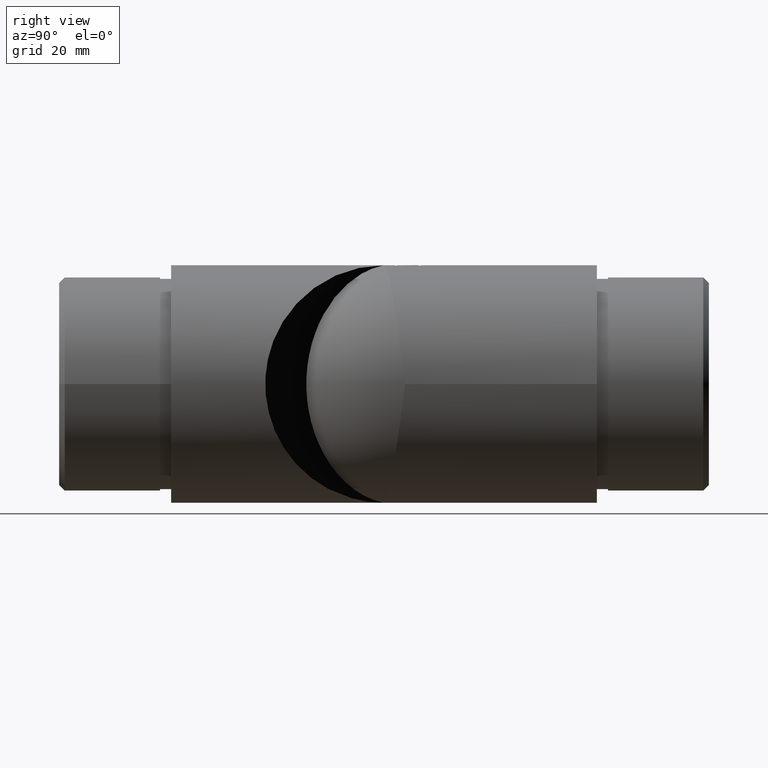
[diagram: clean part render]
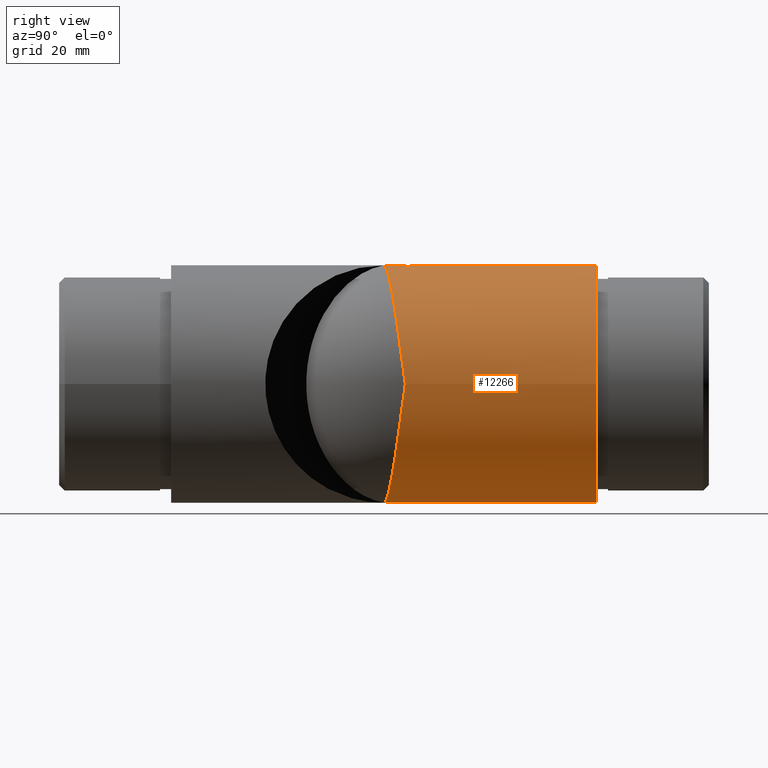
[diagram: same view with one face highlighted and labeled with its STEP entity id]
A machine part, right view. The second image highlights one B-rep face of the part: STEP entity #12266.
In plain terms, the highlighted cylindrical surface (bore or boss wall) has radius 21.2 mm, axis along (-0, -1, -0).
Its self-contained STEP definition (entity closure, byte-faithful):
#91 = CARTESIAN_POINT ( 'NONE',  ( -4.876947464899439300, 37.61251571859919800, -20.64297535189070500 ) ) ;
#214 = CARTESIAN_POINT ( 'NONE',  ( -18.03023835138629100, 35.74744722166654000, -11.17298058216602600 ) ) ;
#329 = CARTESIAN_POINT ( 'NONE',  ( 21.19999999999999200, 16.80000000000000100, -6.188801143558286000E-012 ) ) ;
#350 = ORIENTED_EDGE ( 'NONE', *, *, #1686, .F. ) ;
#385 = ORIENTED_EDGE ( 'NONE', *, *, #16563, .F. ) ;
#571 = CARTESIAN_POINT ( 'NONE',  ( 2.060276313999473500, 32.20682909235768700, 21.09986473249838900 ) ) ;
#625 = DIRECTION ( 'NONE',  ( -1.000000000000000000, -2.225770373877210300E-018, 2.565854121688507800E-049 ) ) ;
#630 = CARTESIAN_POINT ( 'NONE',  ( 1.951354978294854500, 32.07687989557638300, 21.11034249711790200 ) ) ;
#684 = CARTESIAN_POINT ( 'NONE',  ( 0.6725235208547485400, 31.29711668224037500, 21.18998478002686200 ) ) ;
#766 = CYLINDRICAL_SURFACE ( 'NONE', #2791, 21.19999999999999600 ) ;
#867 = CARTESIAN_POINT ( 'NONE',  ( -1.591248601577588900, 31.72385864822288700, 21.14157405171555500 ) ) ;
#870 = DIRECTION ( 'NONE',  ( -2.225770373877210300E-018, 1.000000000000000000, 0.0000000000000000000 ) ) ;
#993 = CARTESIAN_POINT ( 'NONE',  ( -2.591267127455228400, 33.92437889236012400, 21.04103929645864200 ) ) ;
#1054 = CARTESIAN_POINT ( 'NONE',  ( -17.28137778554534500, 35.91342404184141700, 12.29915906282126600 ) ) ;
#1065 = CARTESIAN_POINT ( 'NONE',  ( -0.5058401775420055000, 36.25015391912662500, 21.19396436995174700 ) ) ;
#1111 = CARTESIAN_POINT ( 'NONE',  ( -21.19999999999999900, 34.24782956199585000, 0.3432930331084889100 ) ) ;
#1122 = CARTESIAN_POINT ( 'NONE',  ( -0.8341021363156215800, 36.16949714704642800, 21.18416359969043900 ) ) ;
#1236 = FACE_OUTER_BOUND ( 'NONE', #7551, .T. ) ;
#1485 = CARTESIAN_POINT ( 'NONE',  ( -19.85489945588154400, 35.22426898790543200, -7.462962638755028500 ) ) ;
#1542 = CARTESIAN_POINT ( 'NONE',  ( -0.07601385158659268400, 38.07601385158666600, -21.19986372348920500 ) ) ;
#1599 = CARTESIAN_POINT ( 'NONE',  ( -7.535870885603301900, 37.32767299252898900, -19.81847386008953300 ) ) ;
#1686 = EDGE_CURVE ( 'NONE', #8621, #2705, #12999, .T. ) ;
#1775 = CARTESIAN_POINT ( 'NONE',  ( 21.19999999999636500, 16.80000000000364200, -12.45400726603012100 ) ) ;
#1948 = EDGE_LOOP ( 'NONE', ( #350, #4074, #385 ) ) ;
#2020 = CARTESIAN_POINT ( 'NONE',  ( 1.305047934249331700, 31.53663841093051800, 21.16210479806359500 ) ) ;
#2211 = CARTESIAN_POINT ( 'NONE',  ( -6.938893903907228400E-015, 60.00000000000000000, 0.0000000000000000000 ) ) ;
#2269 = CARTESIAN_POINT ( 'NONE',  ( -1.951844550114502500, 32.07730197156065800, 21.11030220594288700 ) ) ;
#2329 = CARTESIAN_POINT ( 'NONE',  ( -2.574363530950678000, 33.42293016843999000, 21.04314105797024900 ) ) ;
#2344 = CARTESIAN_POINT ( 'NONE',  ( -0.07601385158659268400, 38.07601385158666600, -21.19986372348920500 ) ) ;
#2394 = CARTESIAN_POINT ( 'NONE',  ( -2.540943528160995800, 33.25902457183297400, 21.04717572470702400 ) ) ;
#2453 = CARTESIAN_POINT ( 'NONE',  ( -1.831645900602197900, 31.95948753044806900, 21.12072615453377400 ) ) ;
#2511 = CARTESIAN_POINT ( 'NONE',  ( -20.66416437573107200, 34.85766307801488800, 4.785862745798515200 ) ) ;
#2521 = CARTESIAN_POINT ( 'NONE',  ( -1.711157555326160200, 35.67330146798826700, 21.13117358004590300 ) ) ;
#2705 = VERTEX_POINT ( 'NONE', #6028 ) ;
#2791 = AXIS2_PLACEMENT_3D ( 'NONE', #2211, #870, #8137 ) ;
#2935 = CARTESIAN_POINT ( 'NONE',  ( -15.99817491867133700, 36.16835470682796900, -13.97846753856135700 ) ) ;
#2958 = EDGE_LOOP ( 'NONE', ( #10523 ) ) ;
#3067 = CARTESIAN_POINT ( 'NONE',  ( -9.456149067783771400, 37.10889534448011100, -19.02468510231436100 ) ) ;
#3416 = CARTESIAN_POINT ( 'NONE',  ( 2.249346963026256600, 32.48452435680111700, 21.08054715750236600 ) ) ;
#3481 = DIRECTION ( 'NONE',  ( -2.225770373877210300E-018, 1.000000000000000000, 0.0000000000000000000 ) ) ;
#3549 = CARTESIAN_POINT ( 'NONE',  ( 2.154811638512864800, 32.34567672457939800, 21.09020594500037800 ) ) ;
#3648 = AXIS2_PLACEMENT_3D ( 'NONE', #16472, #3481, #625 ) ;
#3735 = CARTESIAN_POINT ( 'NONE',  ( -2.059372998694082700, 32.20579450565670500, 21.09995107457363200 ) ) ;
#3801 = CARTESIAN_POINT ( 'NONE',  ( -2.540912171581352300, 34.25584785708202400, 21.04717951024102600 ) ) ;
#3857 = CARTESIAN_POINT ( 'NONE',  ( -1.146897792832930000, 36.04257186250617200, 21.16953327886684000 ) ) ;
#3921 = CARTESIAN_POINT ( 'NONE',  ( -1.298604116874686000, 35.96309262627627100, 21.16065952580389700 ) ) ;
#3990 = CARTESIAN_POINT ( 'NONE',  ( -2.393599870086692900, 32.78377073091802900, 21.06444111914486300 ) ) ;
#4074 = ORIENTED_EDGE ( 'NONE', *, *, #9518, .F. ) ;
#4403 = CARTESIAN_POINT ( 'NONE',  ( -21.19999999999999900, 34.24782940267100200, -0.3432918895365424400 ) ) ;
#4471 = CARTESIAN_POINT ( 'NONE',  ( -2.845956738026876700, 37.81724074777948600, -21.05347292163229900 ) ) ;
#4590 = CARTESIAN_POINT ( 'NONE',  ( -19.32954206763731300, 35.40066477718501400, -8.733936524045606800 ) ) ;
#4747 = CARTESIAN_POINT ( 'NONE',  ( -21.19999999999999900, -4.718633192619686000E-017, 5.439610737979636700E-048 ) ) ;
#5062 = CARTESIAN_POINT ( 'NONE',  ( 0.1712946466703030300, 31.21575459460083800, 21.19998923076790100 ) ) ;
#5083 = FACE_OUTER_BOUND ( 'NONE', #1948, .T. ) ;
#5091 = EDGE_CURVE ( 'NONE', #9174, #9174, #17935, .T. ) ;
#5129 = CARTESIAN_POINT ( 'NONE',  ( 2.591236585608830600, 33.75735931288071600, 21.04104305773366700 ) ) ;
#5192 = CARTESIAN_POINT ( 'NONE',  ( -2.247629423759361300, 32.48171373524791500, 21.08072850901036300 ) ) ;
#5251 = CARTESIAN_POINT ( 'NONE',  ( -2.071762290636565600, 35.31993348560070000, 21.09990590518867700 ) ) ;
#5321 = CARTESIAN_POINT ( 'NONE',  ( 0.3395012043963817100, 36.29888007732557800, 21.19997755443327800 ) ) ;
#5386 = CARTESIAN_POINT ( 'NONE',  ( -1.831359133762962000, 35.55551214052574900, 21.12075102176016000 ) ) ;
#5442 = CARTESIAN_POINT ( 'NONE',  ( -1.306160198956869000, 31.53678643379448200, 21.16208132798924200 ) ) ;
#5500 = CARTESIAN_POINT ( 'NONE',  ( -15.52378780856727900, 36.24706245857500900, 14.45437514110131600 ) ) ;
#5574 = CARTESIAN_POINT ( 'NONE',  ( -1.473497291958207400, 37.94820681553150600, 21.19485293189751500 ) ) ;
#5639 = CARTESIAN_POINT ( 'NONE',  ( -14.06331153729030900, 36.48982920910690800, 15.92391481971549700 ) ) ;
#5706 = CARTESIAN_POINT ( 'NONE',  ( -21.20000000000000300, 34.19999999999999600, 3.469446951953614200E-015 ) ) ;
#5822 = CARTESIAN_POINT ( 'NONE',  ( -21.13198842323668100, 34.43983993908383900, -1.731754772589122200 ) ) ;
#6028 = CARTESIAN_POINT ( 'NONE',  ( -0.07601385157421369800, 38.07601385157429500, 21.19986372349171300 ) ) ;
#6071 = CARTESIAN_POINT ( 'NONE',  ( -20.48820445617149800, 34.95384454793330800, -5.491047270462331700 ) ) ;
#6252 = FACE_BOUND ( 'NONE', #2958, .T. ) ;
#6486 = CARTESIAN_POINT ( 'NONE',  ( 1.593367356224911100, 31.72582007975721700, 21.14139462892337200 ) ) ;
#6601 = CARTESIAN_POINT ( 'NONE',  ( 2.458326874833463000, 32.93684766686201500, 21.05708631512762000 ) ) ;
#6669 = CARTESIAN_POINT ( 'NONE',  ( 2.328145427187890100, 34.88575612986068100, 21.07187877763392000 ) ) ;
#6734 = CARTESIAN_POINT ( 'NONE',  ( 1.712198039826212900, 35.67238341909231300, 21.13108826631530900 ) ) ;
#6790 = CARTESIAN_POINT ( 'NONE',  ( 2.591308468925347200, 34.09092584585432200, 21.04103420519345800 ) ) ;
#6852 = CARTESIAN_POINT ( 'NONE',  ( 2.061145362105952100, 35.30663195489168500, 21.09977665325297700 ) ) ;
#6924 = CARTESIAN_POINT ( 'NONE',  ( 1.440911770450246800, 35.86984948206490700, 21.15097570491200300 ) ) ;
#6984 = CARTESIAN_POINT ( 'NONE',  ( -18.42527640252301400, 35.65954243909347800, 10.57594046730142200 ) ) ;
#7046 = CARTESIAN_POINT ( 'NONE',  ( -10.67632976168713700, 36.95579027734014900, 18.32862241166557000 ) ) ;
#7113 = CARTESIAN_POINT ( 'NONE',  ( -21.19150679897881100, 34.29638576942144800, 0.6927890106287406500 ) ) ;
#7226 = CARTESIAN_POINT ( 'NONE',  ( -20.92878601764071400, 34.67543671450533800, -3.450821341880682800 ) ) ;
#7338 = CARTESIAN_POINT ( 'NONE',  ( -18.38717911704300800, 35.66110987323222000, -10.57488074210316500 ) ) ;
#7551 = EDGE_LOOP ( 'NONE', ( #10315 ) ) ;
#8134 = CARTESIAN_POINT ( 'NONE',  ( 1.952240038816246200, 35.43695483763611500, 21.11026461883497900 ) ) ;
#8137 = DIRECTION ( 'NONE',  ( -1.000000000000000000, 0.0000000000000000000, 2.565854121688507800E-049 ) ) ;
#8184 = CARTESIAN_POINT ( 'NONE',  ( 2.248795162943009200, 35.03098588021051500, 21.08060282193121900 ) ) ;
#8250 = CARTESIAN_POINT ( 'NONE',  ( 2.524435134754623400, 34.42150556370472700, 21.04957416785802200 ) ) ;
#8306 = CARTESIAN_POINT ( 'NONE',  ( -21.13219192331343200, 34.43945060839263300, 1.728928319580534500 ) ) ;
#8384 = CARTESIAN_POINT ( 'NONE',  ( 0.9927665875295838000, 36.10511357827960700, 21.17674230146564800 ) ) ;
#8621 = VERTEX_POINT ( 'NONE', #9650 ) ;
#8800 = CARTESIAN_POINT ( 'NONE',  ( -5.548781577216068700, 37.54293192070805700, -20.47283604794625900 ) ) ;
#8845 = CARTESIAN_POINT ( 'NONE',  ( -0.07601385158659268400, 38.07601385158666600, -21.19986372348920500 ) ) ;
#8856 = CARTESIAN_POINT ( 'NONE',  ( -21.15748232352910600, 34.39224212022432400, -1.386137272481780600 ) ) ;
#8921 = CARTESIAN_POINT ( 'NONE',  ( -6.880928499453211200, 37.39998283979495100, -20.05527559354266400 ) ) ;
#8975 = CARTESIAN_POINT ( 'NONE',  ( 21.20000000000362700, 16.79999999999636600, 12.45400726601774700 ) ) ;
#9174 = VERTEX_POINT ( 'NONE', #13724 ) ;
#9295 = CARTESIAN_POINT ( 'NONE',  ( 2.541437693445760100, 33.26145499026196000, 21.04711606017158900 ) ) ;
#9518 = EDGE_CURVE ( 'NONE', #9976, #8621, #11891, .T. ) ;
#9598 = CARTESIAN_POINT ( 'NONE',  ( -2.574061465756926700, 34.09325643512367100, 21.04317757520697200 ) ) ;
#9650 = CARTESIAN_POINT ( 'NONE',  ( -21.20000000000000300, 34.19999999999999600, 3.469446951953614200E-015 ) ) ;
#9666 = CARTESIAN_POINT ( 'NONE',  ( -2.393507873671271400, 34.73116547661858500, 21.06445157270118800 ) ) ;
#9730 = CARTESIAN_POINT ( 'NONE',  ( 2.591236585608830600, 33.75735931288071600, 21.04104305773366700 ) ) ;
#9778 = CARTESIAN_POINT ( 'NONE',  ( -19.86448555986991900, 35.22081270099592800, 7.437936016889516100 ) ) ;
#9789 = CARTESIAN_POINT ( 'NONE',  ( -2.507762877405777400, 34.41843927904037800, 21.05118144527508100 ) ) ;
#9854 = CARTESIAN_POINT ( 'NONE',  ( 2.154970262524480900, 35.16880891755110400, 21.09018973759209800 ) ) ;
#9971 = CARTESIAN_POINT ( 'NONE',  ( -2.858863733026880000, 37.81605072509741900, 21.05290609014669200 ) ) ;
#9976 = VERTEX_POINT ( 'NONE', #2344 ) ;
#10031 = CARTESIAN_POINT ( 'NONE',  ( -8.829928231759486900, 37.18040974718918100, 19.28595268019235900 ) ) ;
#10139 = CARTESIAN_POINT ( 'NONE',  ( -21.03024264058875700, 34.58183564362033700, -2.765597896791845800 ) ) ;
#10256 = CARTESIAN_POINT ( 'NONE',  ( -7.859261415422508000, 37.29136552802703600, -19.69243122131442200 ) ) ;
#10315 = ORIENTED_EDGE ( 'NONE', *, *, #15193, .T. ) ;
#10523 = ORIENTED_EDGE ( 'NONE', *, *, #5091, .T. ) ;
#10882 = CARTESIAN_POINT ( 'NONE',  ( 0.3394946403555153500, 31.23207869429088400, 21.19793589604994800 ) ) ;
#11070 = CARTESIAN_POINT ( 'NONE',  ( -0.6717795531984346300, 31.29696624716597600, 21.19000336142252600 ) ) ;
#11127 = CARTESIAN_POINT ( 'NONE',  ( -0.8329517070009460100, 31.34474734324122000, 21.18421881031364900 ) ) ;
#11191 = CARTESIAN_POINT ( 'NONE',  ( -0.6730279041337594600, 36.21750715785740500, 21.18997407026897800 ) ) ;
#11248 = CARTESIAN_POINT ( 'NONE',  ( -0.07601385157421369800, 38.07601385157429500, 21.19986372349171300 ) ) ;
#11261 = CARTESIAN_POINT ( 'NONE',  ( -0.3400293594862530700, 31.23218826679427100, 21.19792230997842400 ) ) ;
#11323 = CARTESIAN_POINT ( 'NONE',  ( -21.03116870069465000, 34.58075182653283300, 2.757690619871020500 ) ) ;
#11514 = CARTESIAN_POINT ( 'NONE',  ( -5.601131045695246300, 37.53940413044809100, 20.49451847918123400 ) ) ;
#11746 = CARTESIAN_POINT ( 'NONE',  ( -6.548530593746210800, 37.43607379405641200, -20.16626503029763000 ) ) ;
#11891 = B_SPLINE_CURVE_WITH_KNOTS ( 'NONE', 3,
 ( #1542, #18861, #4471, #91, #8800, #11746, #8921, #1599, #10256, #3067, #13193, #14663, #16165, #14782, #16058, #2935, #13254, #214, #7338, #13324, #4590, #1485, #13075, #6071, #17506, #7226, #10139, #5822, #8856, #13141, #4403, #17391 ),
 .UNSPECIFIED., .F., .F.,
 ( 4, 2, 2, 2, 2, 2, 2, 2, 2, 2, 2, 2, 2, 2, 2, 4 ),
 ( 0.0004859000245178775200, 0.004645136504634039600, 0.006724754744692120800, 0.007764563864721161400, 0.008804372984750202800, 0.01296360946486637500, 0.01504322770492446700, 0.01712284594498255500, 0.02128208242509873800, 0.02336170066515683500, 0.02544131890521493200, 0.02752093714527302900, 0.02960055538533112500, 0.03168017362538921900, 0.03271998274541826300, 0.03375979186544731500 ),
 .UNSPECIFIED. ) ;
#12138 = VERTEX_POINT ( 'NONE', #4747 ) ;
#12170 = CARTESIAN_POINT ( 'NONE',  ( 2.328698676524439300, 32.63028181613843500, 21.07181571626462400 ) ) ;
#12266 = ADVANCED_FACE ( 'NONE', ( #6252, #5083, #1236 ), #766, .T. ) ;
#12480 = CARTESIAN_POINT ( 'NONE',  ( -2.153501211226721800, 32.34375412045231000, 21.09033979179199700 ) ) ;
#12533 = CARTESIAN_POINT ( 'NONE',  ( -0.3386524509502515900, 36.28280068039583700, 21.19795466963451200 ) ) ;
#12579 = CIRCLE ( 'NONE', #3648, 21.19999999999999900 ) ;
#12596 = CARTESIAN_POINT ( 'NONE',  ( -1.439290182749400500, 35.87091279673367000, 21.15108611324347600 ) ) ;
#12668 = CARTESIAN_POINT ( 'NONE',  ( 1.832219039321229600, 35.55466912836421000, 21.12067644257514600 ) ) ;
#12727 = CARTESIAN_POINT ( 'NONE',  ( 1.300019559100922300, 35.96231314722353300, 21.16057399713881900 ) ) ;
#12781 = CARTESIAN_POINT ( 'NONE',  ( -20.93071037710715400, 34.67363935951436100, 3.437664131138236100 ) ) ;
#12999 = B_SPLINE_CURVE_WITH_KNOTS ( 'NONE', 3,
 ( #5706, #1111, #7113, #18564, #8306, #11323, #12781, #2511, #18486, #17274, #9778, #17215, #6984, #1054, #15818, #14230, #5500, #5639, #18630, #15747, #7046, #18755, #10031, #15684, #11514, #9971, #5574, #11248 ),
 .UNSPECIFIED., .F., .F.,
 ( 4, 2, 2, 2, 2, 2, 2, 2, 2, 2, 2, 2, 2, 4 ),
 ( -0.0002267345123568672200, 0.0008130780714765234400, 0.001852890655309914200, 0.003932515822976693000, 0.006012140990643471800, 0.008091766158310248800, 0.01225101649364380600, 0.01433064166131058400, 0.01641026682897736200, 0.02056951716431091800, 0.02264914233197769600, 0.02472876749964447400, 0.02888801783497803000, 0.03304726817031158900 ),
 .UNSPECIFIED. ) ;
#13075 = CARTESIAN_POINT ( 'NONE',  ( -20.08684572817119100, 35.13508196728108100, -6.814451603539941600 ) ) ;
#13141 = CARTESIAN_POINT ( 'NONE',  ( -21.19151545928837900, 34.29640111078690300, -0.6928977899743357100 ) ) ;
#13193 = CARTESIAN_POINT ( 'NONE',  ( -10.67001592723336100, 36.95999110197530500, -18.37143206672479700 ) ) ;
#13254 = CARTESIAN_POINT ( 'NONE',  ( -16.87203388219778300, 36.00380187698665000, -12.91179433955675800 ) ) ;
#13324 = CARTESIAN_POINT ( 'NONE',  ( -19.03613012655218400, 35.48787134355352200, -9.356399328635962600 ) ) ;
#13724 = CARTESIAN_POINT ( 'NONE',  ( 2.591236585608830600, 33.75735931288071600, 21.04104305773366700 ) ) ;
#13739 = CARTESIAN_POINT ( 'NONE',  ( 1.832025770938206600, 31.95985995696998900, 21.12069320771972500 ) ) ;
#13804 = CARTESIAN_POINT ( 'NONE',  ( 0.5060090806051319400, 31.26459768826563100, 21.19396033803840500 ) ) ;
#13914 =( BOUNDED_CURVE ( )  B_SPLINE_CURVE ( 3, ( #15980, #17556, #8975, #329, #1775, #16214, #8845 ),
 .UNSPECIFIED., .F., .T. ) 
 B_SPLINE_CURVE_WITH_KNOTS ( ( 4, 3, 4 ),
 ( 1.567210760075536300, 3.141592653590085300, 4.715974547104633700 ),
 .UNSPECIFIED. ) 
 CURVE ( )  GEOMETRIC_REPRESENTATION_ITEM ( )  RATIONAL_B_SPLINE_CURVE ( ( 1.000000000000000000, 0.8038919708325861200, 0.8038919708325861200, 1.000000000000000000, 0.8038919708325862300, 0.8038919708325862300, 1.000000000000000000 ) ) 
 REPRESENTATION_ITEM ( '' )  );
#13920 = CARTESIAN_POINT ( 'NONE',  ( -0.9906878709862536600, 31.40876037342564000, 21.17683964953884500 ) ) ;
#13990 = CARTESIAN_POINT ( 'NONE',  ( 0.6803759472921899800, 36.23220074529134400, 21.19138718808087100 ) ) ;
#14050 = CARTESIAN_POINT ( 'NONE',  ( -2.328760700051635300, 32.63040707540164900, 21.07180894001865900 ) ) ;
#14106 = CARTESIAN_POINT ( 'NONE',  ( -0.9904999645742758000, 36.10603450477629700, 21.17684843927864000 ) ) ;
#14230 = CARTESIAN_POINT ( 'NONE',  ( -15.98949056099263500, 36.16470038159549500, 13.93780800269272500 ) ) ;
#14663 = CARTESIAN_POINT ( 'NONE',  ( -12.39488607478564800, 36.72843992885652400, -17.21297441497283400 ) ) ;
#14782 = CARTESIAN_POINT ( 'NONE',  ( -14.02910578716423000, 36.49045967287769100, -15.90935244936392200 ) ) ;
#15193 = EDGE_CURVE ( 'NONE', #12138, #12138, #12579, .T. ) ;
#15260 = CARTESIAN_POINT ( 'NONE',  ( 0.001338062396609766200, 31.21566562867323600, 21.19999995777332200 ) ) ;
#15387 = CARTESIAN_POINT ( 'NONE',  ( 0.001404508523801168700, 36.29905296259711600, 21.19999995347537000 ) ) ;
#15446 = CARTESIAN_POINT ( 'NONE',  ( 1.581803981799571500, 35.77738581690627500, 21.14137741268518800 ) ) ;
#15567 = CARTESIAN_POINT ( 'NONE',  ( 1.148961907648280700, 36.04156999477373800, 21.16941985815804000 ) ) ;
#15632 = CARTESIAN_POINT ( 'NONE',  ( -0.5059044563423438200, 31.26457725698012500, 21.19396283570047500 ) ) ;
#15684 = CARTESIAN_POINT ( 'NONE',  ( -6.921788509416604300, 37.39856833088975900, 20.08559825530413100 ) ) ;
#15747 = CARTESIAN_POINT ( 'NONE',  ( -11.27681354530250600, 36.87866106970224700, 17.96536817404878800 ) ) ;
#15818 = CARTESIAN_POINT ( 'NONE',  ( -16.87087512907226000, 35.99737795962197100, 12.85689980902274400 ) ) ;
#15980 = CARTESIAN_POINT ( 'NONE',  ( -0.07601385157421369800, 38.07601385157429500, 21.19986372349171300 ) ) ;
#16058 = CARTESIAN_POINT ( 'NONE',  ( -14.53993593333012400, 36.41052789596239600, -15.44360877251201500 ) ) ;
#16165 = CARTESIAN_POINT ( 'NONE',  ( -12.95667167224924500, 36.64943132315870900, -16.79428366209945300 ) ) ;
#16214 = CARTESIAN_POINT ( 'NONE',  ( 12.37791335836666900, 25.62208664163336600, -21.24451830178656300 ) ) ;
#16472 = CARTESIAN_POINT ( 'NONE',  ( 0.0000000000000000000, 0.0000000000000000000, 0.0000000000000000000 ) ) ;
#16541 = CARTESIAN_POINT ( 'NONE',  ( 2.508409739472253100, 33.09857013427970400, 21.05110418314890100 ) ) ;
#16563 = EDGE_CURVE ( 'NONE', #2705, #9976, #13914, .T. ) ;
#16651 = CARTESIAN_POINT ( 'NONE',  ( 0.9926137354210277100, 31.40954286627253100, 21.17674946662620900 ) ) ;
#16834 = CARTESIAN_POINT ( 'NONE',  ( -2.591206041278907100, 33.59049710886422000, 21.04104681931454500 ) ) ;
#16900 = CARTESIAN_POINT ( 'NONE',  ( -0.1676438394124890600, 36.29913940523289300, 21.20001115299641000 ) ) ;
#16966 = CARTESIAN_POINT ( 'NONE',  ( -2.458892622535294500, 34.57653523369959500, 21.05702204572375900 ) ) ;
#17027 = CARTESIAN_POINT ( 'NONE',  ( -2.458439040121750600, 32.93713438643441500, 21.05707329827107100 ) ) ;
#17088 = CARTESIAN_POINT ( 'NONE',  ( -2.262738375943224700, 35.04042596245657400, 21.07931062665603500 ) ) ;
#17215 = CARTESIAN_POINT ( 'NONE',  ( -19.07186252301062600, 35.48764869516989500, 9.360917417746661000 ) ) ;
#17274 = CARTESIAN_POINT ( 'NONE',  ( -20.09902754782023500, 35.13013840917135900, 6.778450076700352200 ) ) ;
#17391 = CARTESIAN_POINT ( 'NONE',  ( -21.20000000000000300, 34.19999999999999600, 3.469446951953614200E-015 ) ) ;
#17506 = CARTESIAN_POINT ( 'NONE',  ( -20.65808743434720500, 34.86137573264765900, -4.813073411100076800 ) ) ;
#17556 = CARTESIAN_POINT ( 'NONE',  ( 12.37791335837907200, 25.62208664162095700, 21.24451830177934800 ) ) ;
#17935 = B_SPLINE_CURVE_WITH_KNOTS ( 'NONE', 3,
 ( #5129, #18004, #18068, #9295, #16541, #6601, #18243, #12170, #3416, #3549, #571, #630, #13739, #6486, #2020, #16651, #18131, #684, #13804, #10882, #5062, #15260, #18428, #11261, #15632, #11070, #11127, #13920, #5442, #867, #2453, #2269, #3735, #12480, #5192, #14050, #3990, #17027, #18577, #2394, #2329, #16834, #18308, #993, #9598, #3801, #9789, #16966, #9666, #17088, #5251, #5386, #2521, #18500, #12596, #3921, #3857, #14106, #1122, #11191, #1065, #12533, #16900, #15387, #5321, #13990, #8384, #15567, #12727, #6924, #15446, #6734, #12668, #8134, #6852, #9854, #8184, #6669, #18377, #8250, #6790, #9730 ),
 .UNSPECIFIED., .T., .F.,
 ( 4, 3, 3, 3, 3, 3, 3, 3, 3, 3, 3, 3, 3, 3, 3, 3, 3, 3, 3, 3, 3, 3, 3, 3, 3, 3, 3, 4 ),
 ( 0.0000000000000000000, 0.03703703703703703500, 0.07407407407407407000, 0.1111111111111111000, 0.1481481481481481400, 0.1851851851851851700, 0.2222222222222222100, 0.2592592592592592400, 0.2962962962962962800, 0.3333333333333333100, 0.3703703703703703500, 0.4074074074074073800, 0.4444444444444444200, 0.4814814814814814500, 0.5185185185185184900, 0.5555555555555555800, 0.5925925925925925600, 0.6296296296296296500, 0.6666666666666666300, 0.7037037037037037200, 0.7407407407407407000, 0.7777777777777777900, 0.8148148148148147700, 0.8518518518518518600, 0.8888888888888888400, 0.9259259259259259300, 0.9629629629629629100, 1.000000000000000000 ),
 .UNSPECIFIED. ) ;
#18004 = CARTESIAN_POINT ( 'NONE',  ( 2.591200591382997900, 33.59033211240737400, 21.04104749047754900 ) ) ;
#18068 = CARTESIAN_POINT ( 'NONE',  ( 2.574465647419267100, 33.42433984624420900, 21.04312793719428100 ) ) ;
#18131 = CARTESIAN_POINT ( 'NONE',  ( 0.8363966360068757500, 31.34599509394353600, 21.18407180090751400 ) ) ;
#18243 = CARTESIAN_POINT ( 'NONE',  ( 2.393512775678951200, 32.78356474150022100, 21.06445101569612200 ) ) ;
#18308 = CARTESIAN_POINT ( 'NONE',  ( -2.591236584367067500, 33.75743800061216900, 21.04104305788659300 ) ) ;
#18377 = CARTESIAN_POINT ( 'NONE',  ( 2.393575329710134500, 34.73100594114203000, 21.06444390770862200 ) ) ;
#18428 = CARTESIAN_POINT ( 'NONE',  ( -0.1686185218770834800, 31.21557666274562900, 21.20001068477874600 ) ) ;
#18486 = CARTESIAN_POINT ( 'NONE',  ( -20.49807827924107400, 34.94879709139159700, 5.454088436068970800 ) ) ;
#18500 = CARTESIAN_POINT ( 'NONE',  ( -1.579976248624114900, 35.77873296719106800, 21.14151270068305500 ) ) ;
#18564 = CARTESIAN_POINT ( 'NONE',  ( -21.15757480065236600, 34.39202132626469700, 1.384538038196379200 ) ) ;
#18577 = CARTESIAN_POINT ( 'NONE',  ( -2.507523525371313500, 33.09511897522596500, 21.05121039144380300 ) ) ;
#18630 = CARTESIAN_POINT ( 'NONE',  ( -13.00189105302692000, 36.64668680348538700, 16.80222421299608400 ) ) ;
#18755 = CARTESIAN_POINT ( 'NONE',  ( -9.453744494866036500, 37.10653248628978700, 18.98813133816716100 ) ) ;
#18861 = CARTESIAN_POINT ( 'NONE',  ( -1.471458834988109500, 37.94839324288796000, -21.19486024095157700 ) ) ;